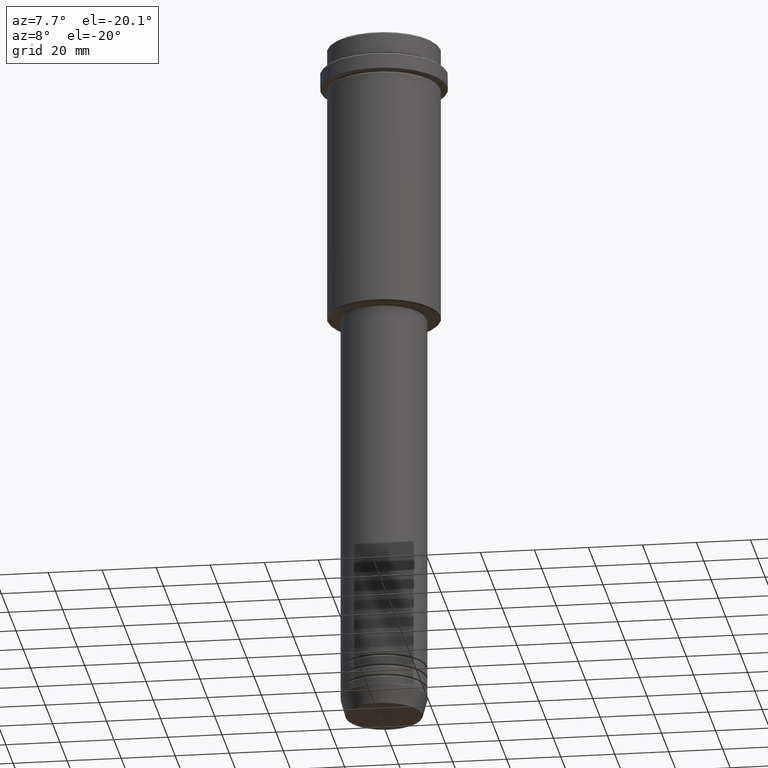
[diagram: clean part render]
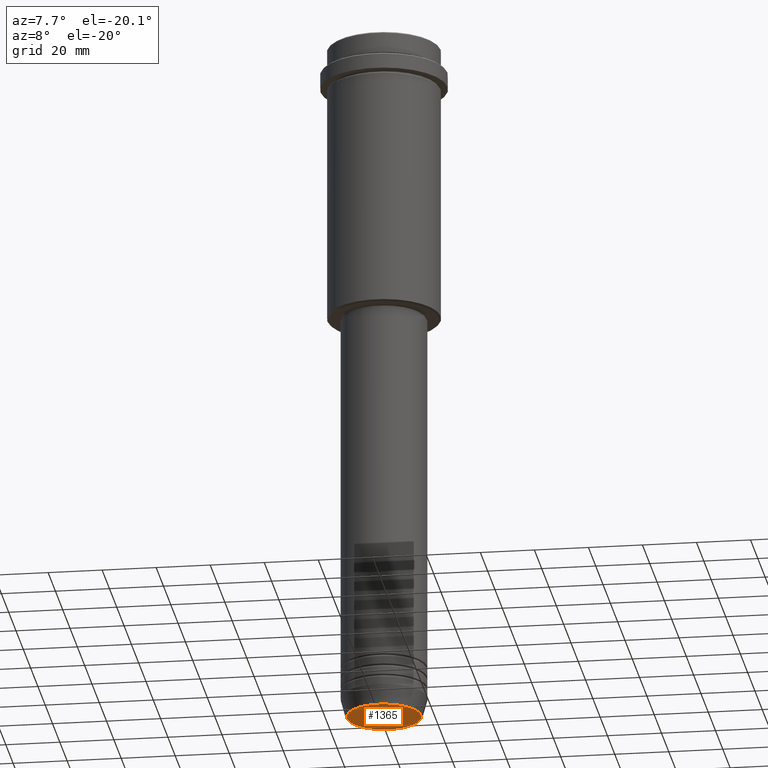
[diagram: same view with one face highlighted and labeled with its STEP entity id]
A machine part, auxiliary view. The second image highlights one B-rep face of the part: STEP entity #1365.
In plain terms, the highlighted planar face has unit normal (0, -0, 1).
Its self-contained STEP definition (entity closure, byte-faithful):
#50 = CIRCLE ( 'NONE', #205, 13.74069215899265828 ) ;
#170 = FACE_OUTER_BOUND ( 'NONE', #872, .T. ) ;
#203 = AXIS2_PLACEMENT_3D ( 'NONE', #803, #1368, #251 ) ;
#205 = AXIS2_PLACEMENT_3D ( 'NONE', #579, #757, #1072 ) ;
#251 = DIRECTION ( 'NONE',  ( 1.000000000000000000, 0.000000000000000000, 0.000000000000000000 ) ) ;
#301 = DIRECTION ( 'NONE',  ( 1.000000000000000000, 0.000000000000000000, 0.000000000000000000 ) ) ;
#408 = EDGE_CURVE ( 'NONE', #534, #935, #943, .T. ) ;
#534 = VERTEX_POINT ( 'NONE', #696 ) ;
#579 = CARTESIAN_POINT ( 'NONE',  ( 0.000000000000000000, 0.000000000000000000, -260.0000000000000000 ) ) ;
#638 = CARTESIAN_POINT ( 'NONE',  ( 0.000000000000000000, 0.000000000000000000, -260.0000000000000000 ) ) ;
#696 = CARTESIAN_POINT ( 'NONE',  ( -13.74069215899265828, 1.712322416342415986E-15, -260.0000000000000000 ) ) ;
#730 = PLANE ( 'NONE',  #1141 ) ;
#740 = ORIENTED_EDGE ( 'NONE', *, *, #408, .T. ) ;
#757 = DIRECTION ( 'NONE',  ( 0.000000000000000000, 0.000000000000000000, -1.000000000000000000 ) ) ;
#803 = CARTESIAN_POINT ( 'NONE',  ( 0.000000000000000000, 0.000000000000000000, -260.0000000000000000 ) ) ;
#826 = EDGE_CURVE ( 'NONE', #935, #534, #50, .T. ) ;
#872 = EDGE_LOOP ( 'NONE', ( #1414, #740 ) ) ;
#935 = VERTEX_POINT ( 'NONE', #1043 ) ;
#943 = CIRCLE ( 'NONE', #203, 13.74069215899265828 ) ;
#954 = DIRECTION ( 'NONE',  ( 0.000000000000000000, -0.000000000000000000, 1.000000000000000000 ) ) ;
#1043 = CARTESIAN_POINT ( 'NONE',  ( 13.74069215899265828, 0.000000000000000000, -260.0000000000000000 ) ) ;
#1072 = DIRECTION ( 'NONE',  ( 1.000000000000000000, 0.000000000000000000, 0.000000000000000000 ) ) ;
#1141 = AXIS2_PLACEMENT_3D ( 'NONE', #638, #954, #301 ) ;
#1365 = ADVANCED_FACE ( 'NONE', ( #170 ), #730, .F. ) ;
#1368 = DIRECTION ( 'NONE',  ( 0.000000000000000000, 0.000000000000000000, -1.000000000000000000 ) ) ;
#1414 = ORIENTED_EDGE ( 'NONE', *, *, #826, .T. ) ;